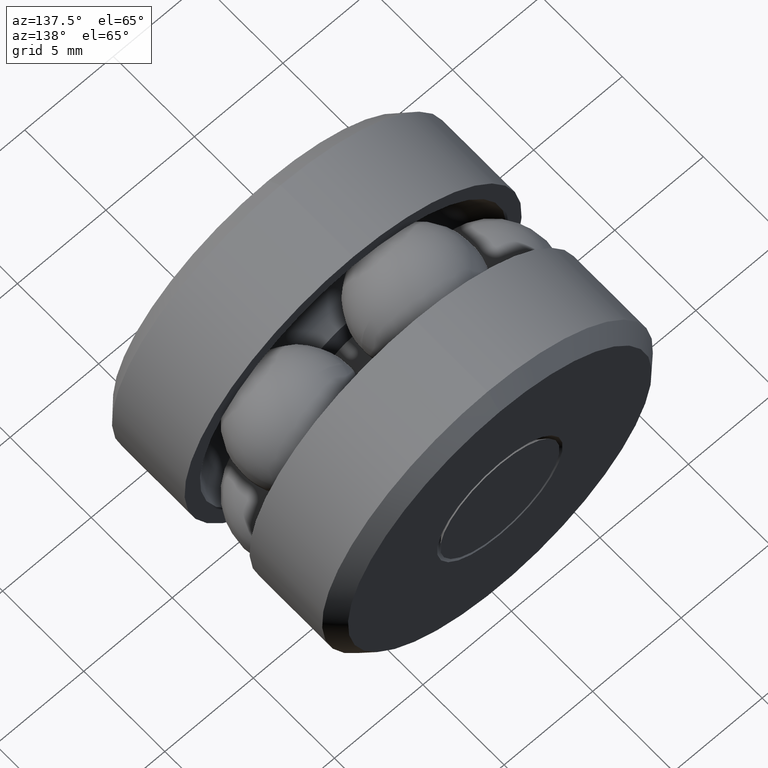
[diagram: clean part render]
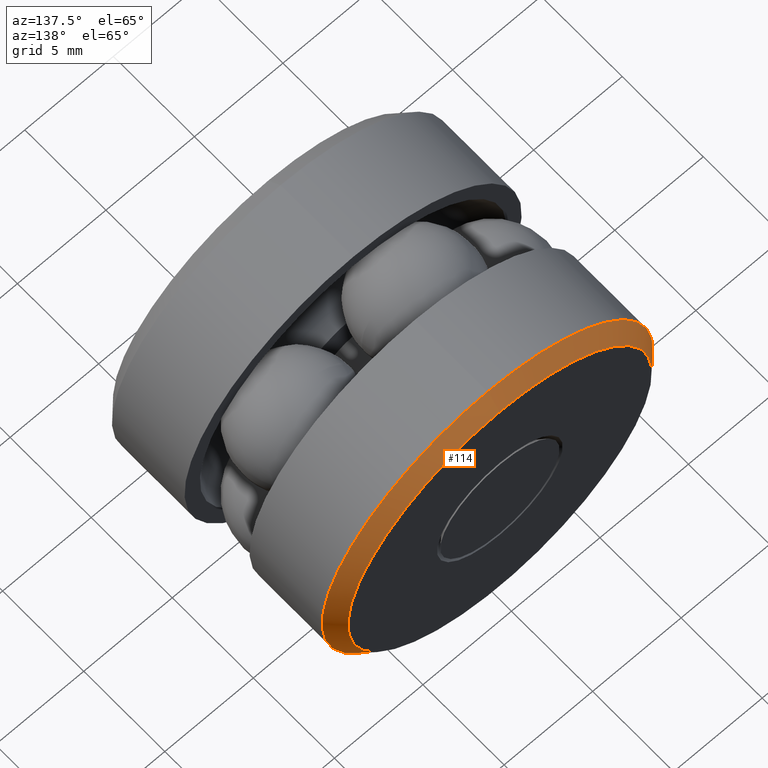
[diagram: same view with one face highlighted and labeled with its STEP entity id]
A machine part, auxiliary view. The second image highlights one B-rep face of the part: STEP entity #114.
In plain terms, the highlighted conical surface has half-angle 45 deg.
Its self-contained STEP definition (entity closure, byte-faithful):
#24 = DIRECTION ( 'NONE',  ( 0.0000000000000000000, 0.0000000000000000000, 1.000000000000000000 ) ) ;
#28 = CARTESIAN_POINT ( 'NONE',  ( 0.0000000000000000000, 0.5624999999999998900, 0.0000000000000000000 ) ) ;
#41 = CARTESIAN_POINT ( 'NONE',  ( 0.0000000000000000000, 0.5324999999999996400, 0.0000000000000000000 ) ) ;
#97 = VERTEX_POINT ( 'NONE', #261 ) ;
#114 = ADVANCED_FACE ( 'NONE', ( #226, #436 ), #526, .T. ) ;
#136 = EDGE_LOOP ( 'NONE', ( #227 ) ) ;
#144 = DIRECTION ( 'NONE',  ( -0.0000000000000000000, 1.000000000000000000, -0.0000000000000000000 ) ) ;
#155 = CARTESIAN_POINT ( 'NONE',  ( 0.0000000000000000000, 0.5624999999999998900, 0.0000000000000000000 ) ) ;
#167 = CIRCLE ( 'NONE', #306, 0.3679999999999999900 ) ;
#207 = DIRECTION ( 'NONE',  ( 0.0000000000000000000, 0.0000000000000000000, 1.000000000000000000 ) ) ;
#226 = FACE_OUTER_BOUND ( 'NONE', #521, .T. ) ;
#227 = ORIENTED_EDGE ( 'NONE', *, *, #539, .F. ) ;
#252 = DIRECTION ( 'NONE',  ( 0.0000000000000000000, 0.0000000000000000000, -1.000000000000000000 ) ) ;
#261 = CARTESIAN_POINT ( 'NONE',  ( 0.0000000000000000000, 0.5324999999999996400, 0.3679999999999999900 ) ) ;
#267 = CIRCLE ( 'NONE', #394, 0.3380000000000001300 ) ;
#306 = AXIS2_PLACEMENT_3D ( 'NONE', #41, #496, #24 ) ;
#307 = ORIENTED_EDGE ( 'NONE', *, *, #511, .T. ) ;
#308 = DIRECTION ( 'NONE',  ( 0.0000000000000000000, -1.000000000000000000, 0.0000000000000000000 ) ) ;
#368 = AXIS2_PLACEMENT_3D ( 'NONE', #155, #308, #252 ) ;
#378 = CARTESIAN_POINT ( 'NONE',  ( 0.0000000000000000000, 0.5624999999999998900, 0.3380000000000001300 ) ) ;
#394 = AXIS2_PLACEMENT_3D ( 'NONE', #28, #144, #207 ) ;
#436 = FACE_BOUND ( 'NONE', #136, .T. ) ;
#496 = DIRECTION ( 'NONE',  ( -0.0000000000000000000, 1.000000000000000000, -0.0000000000000000000 ) ) ;
#511 = EDGE_CURVE ( 'NONE', #97, #97, #167, .T. ) ;
#521 = EDGE_LOOP ( 'NONE', ( #307 ) ) ;
#524 = VERTEX_POINT ( 'NONE', #378 ) ;
#526 = CONICAL_SURFACE ( 'NONE', #368, 0.3380000000000001300, 0.7853981633974415100 ) ;
#539 = EDGE_CURVE ( 'NONE', #524, #524, #267, .T. ) ;